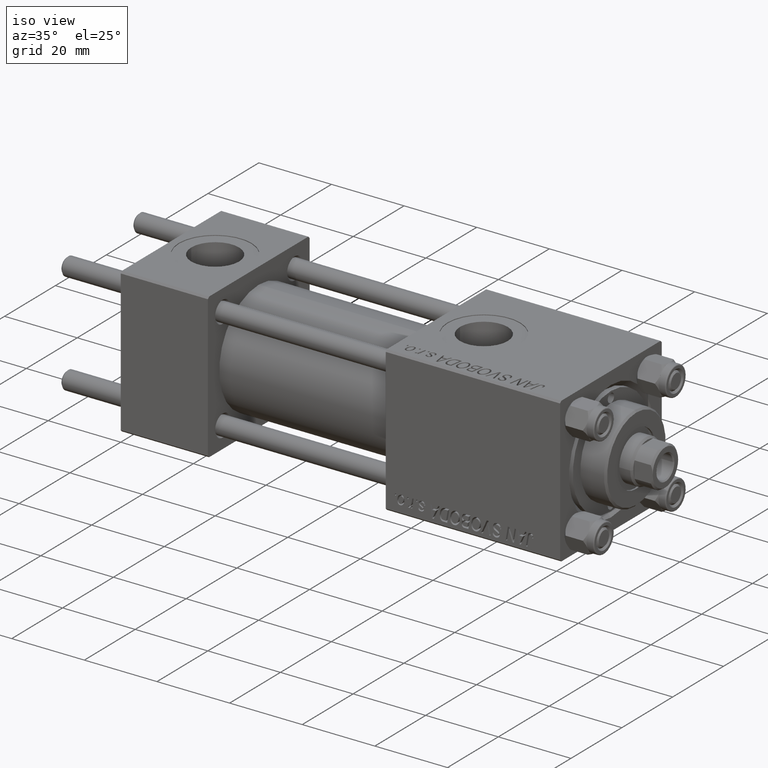
[diagram: clean part render]
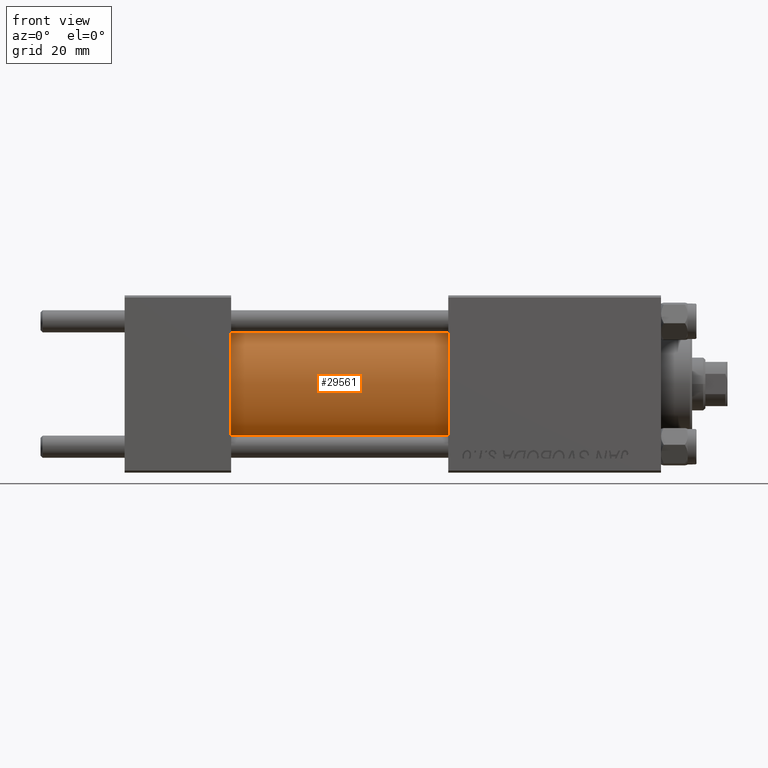
[diagram: tour spotlight — one face highlighted and labeled with its STEP entity id]
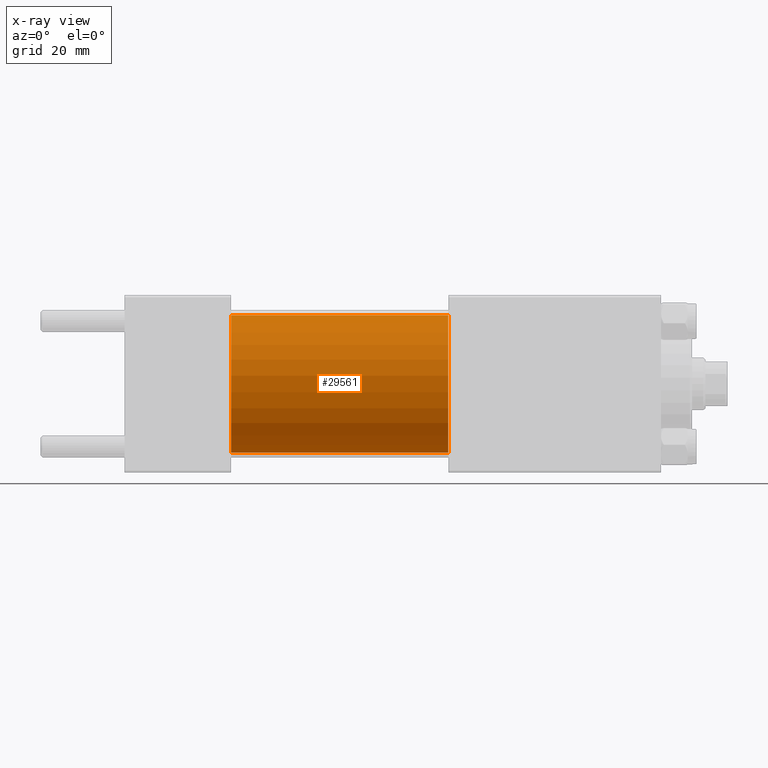
[diagram: x-ray of the same camera — body ghosted, this tour face saturated]
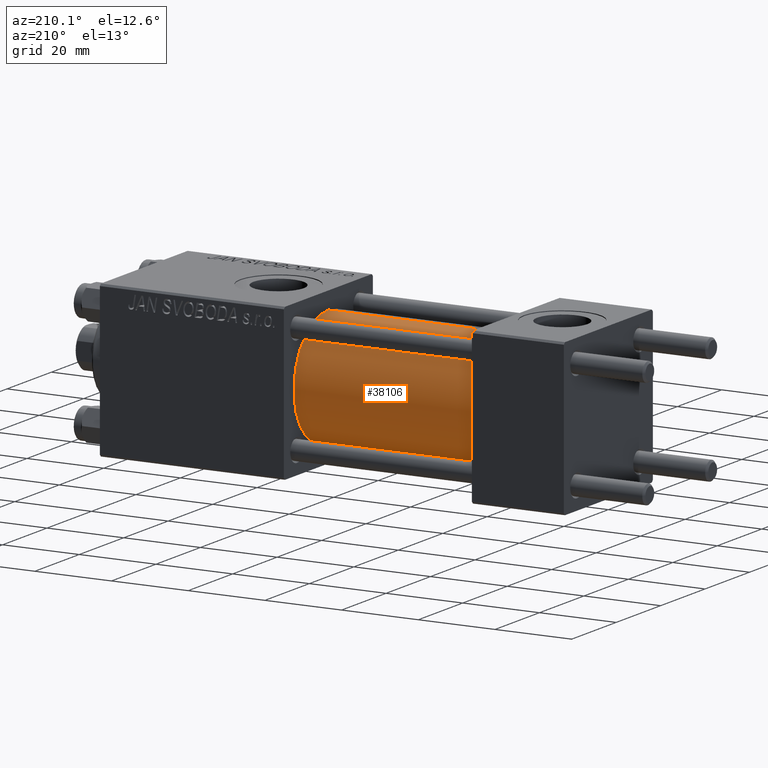
[diagram: tour spotlight — one face highlighted and labeled with its STEP entity id]
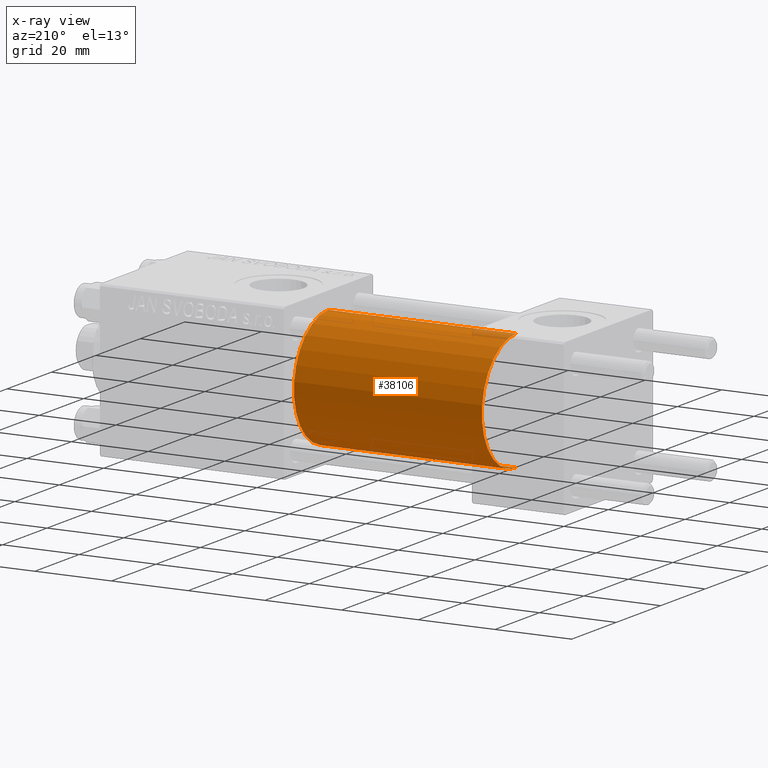
[diagram: x-ray of the same camera — body ghosted, this tour face saturated]
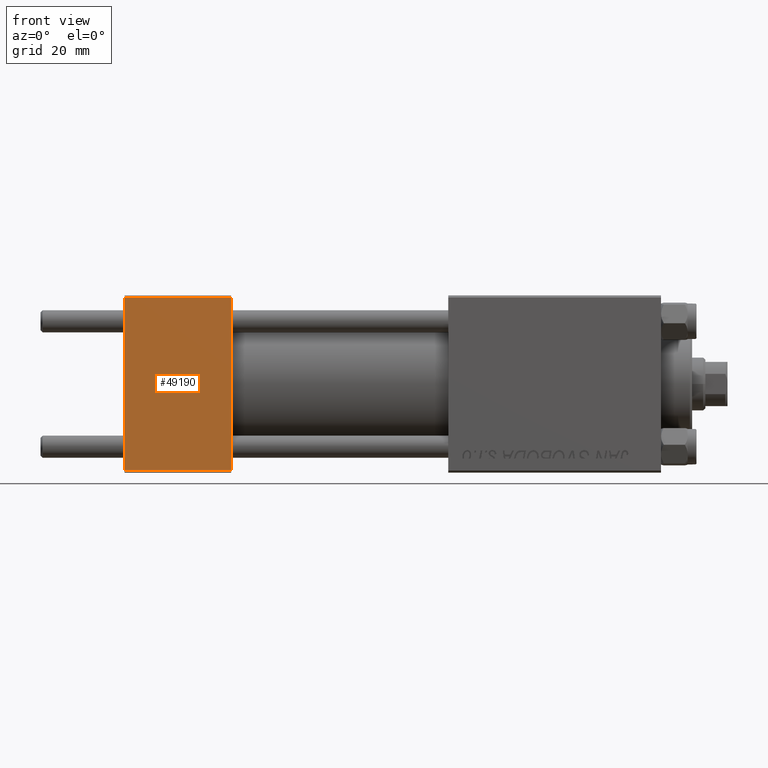
[diagram: tour spotlight — one face highlighted and labeled with its STEP entity id]
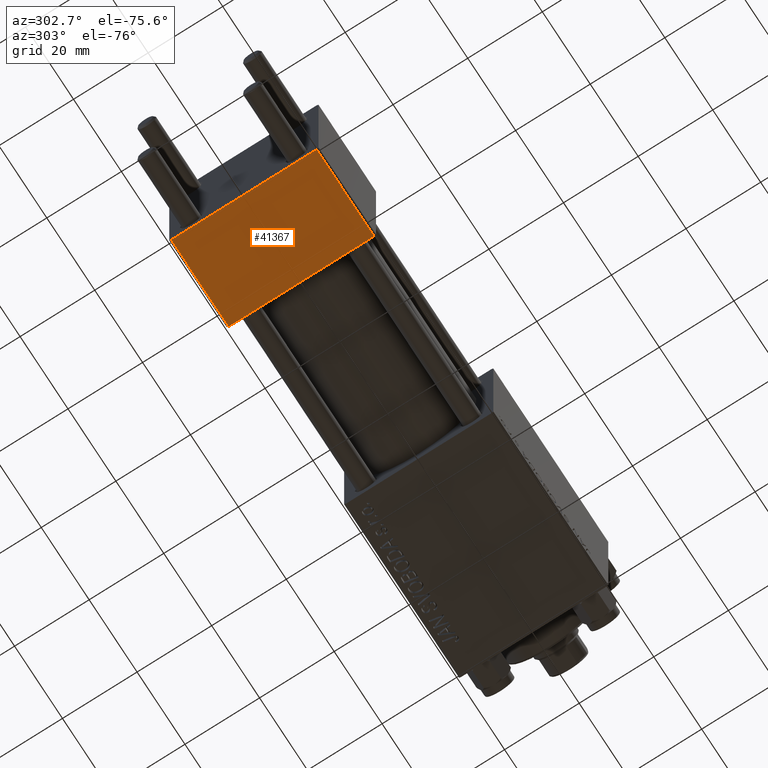
[diagram: tour spotlight — one face highlighted and labeled with its STEP entity id]
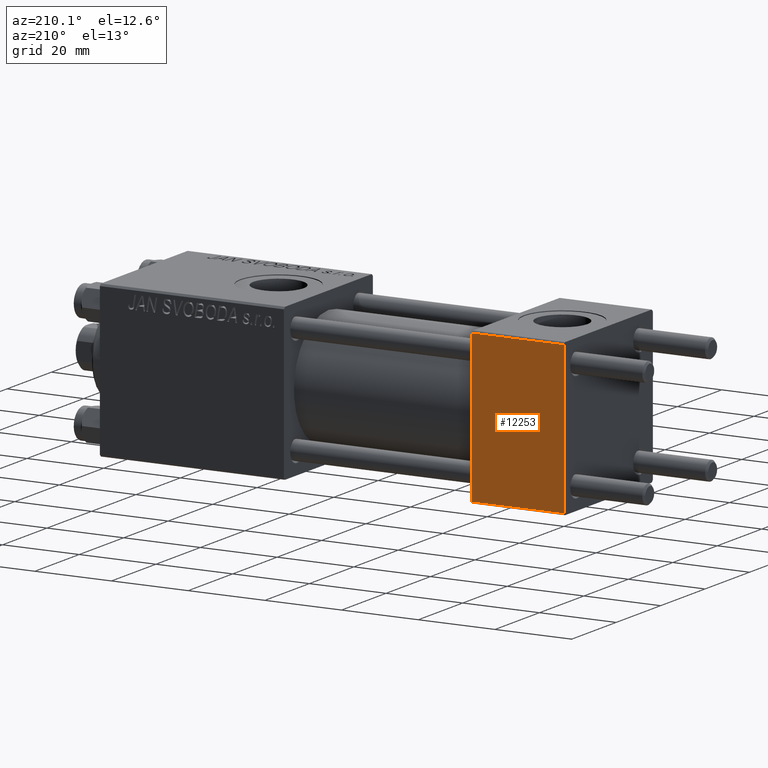
[diagram: tour spotlight — one face highlighted and labeled with its STEP entity id]
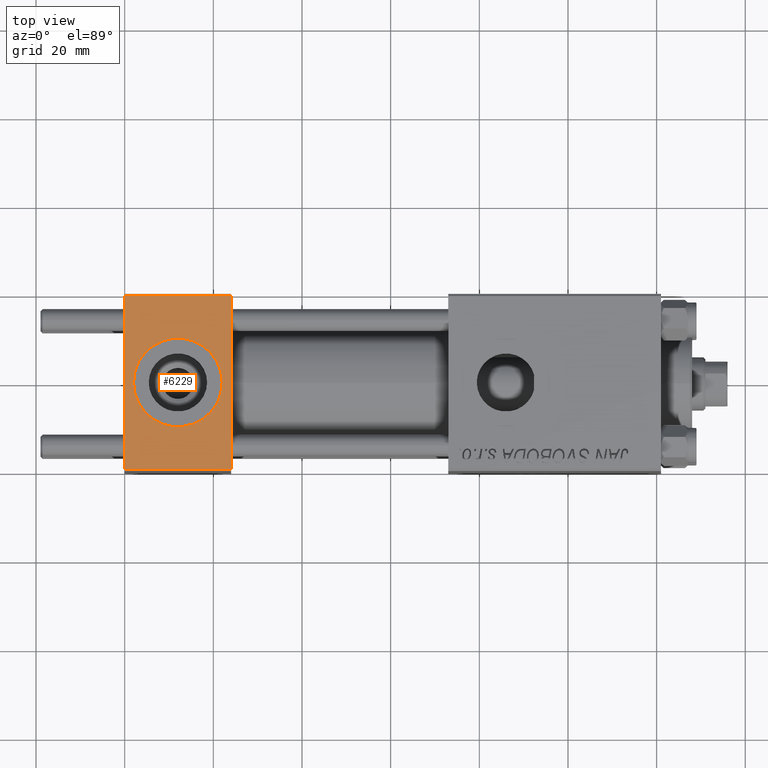
[diagram: tour spotlight — one face highlighted and labeled with its STEP entity id]
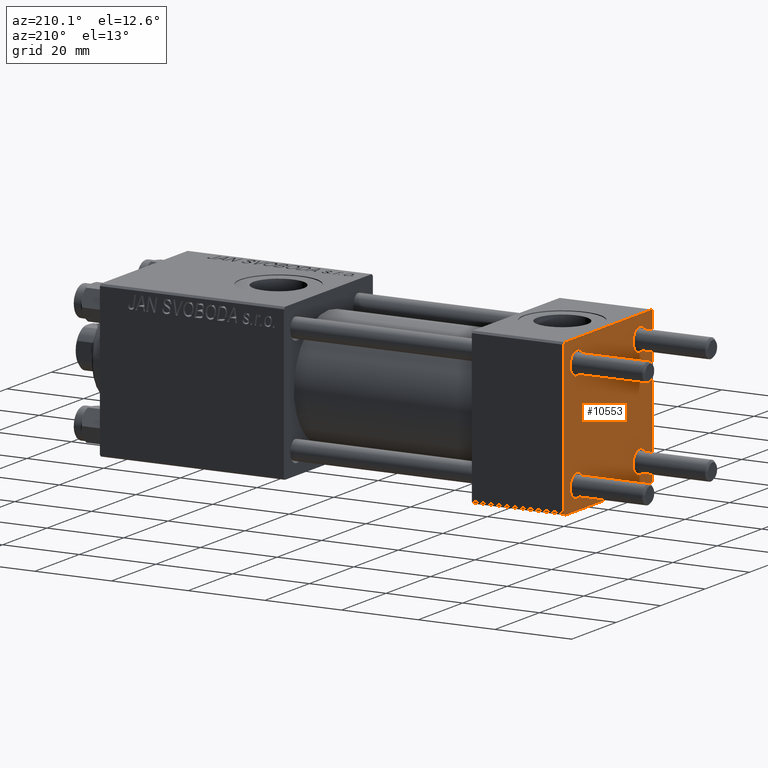
[diagram: tour spotlight — one face highlighted and labeled with its STEP entity id]
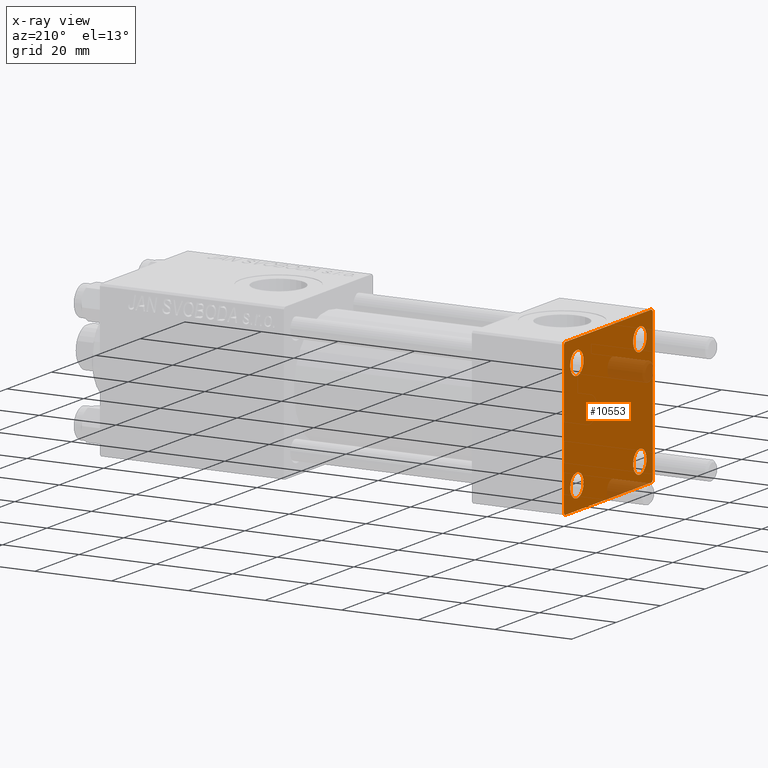
[diagram: x-ray of the same camera — body ghosted, this tour face saturated]
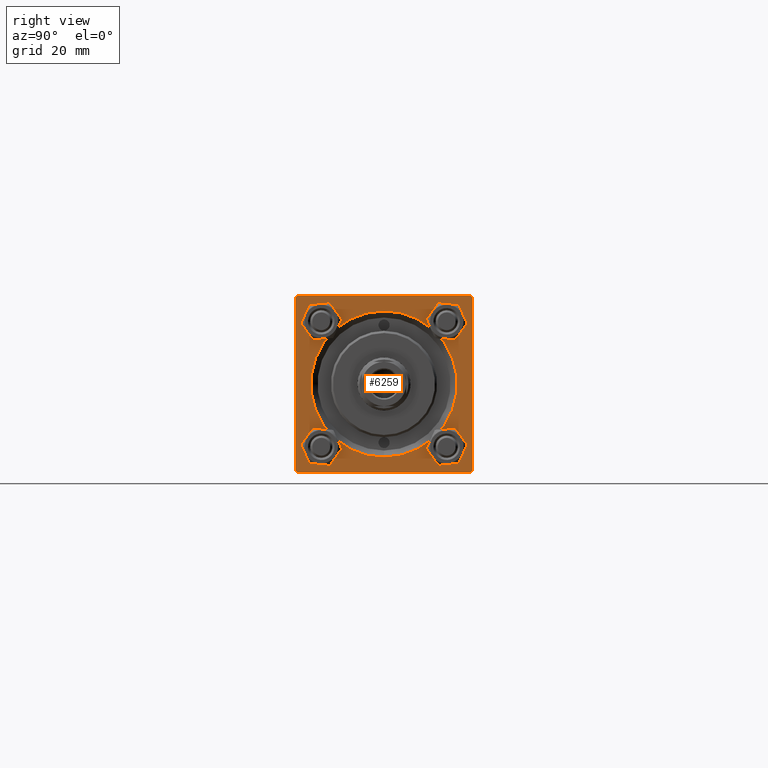
[diagram: tour spotlight — one face highlighted and labeled with its STEP entity id]
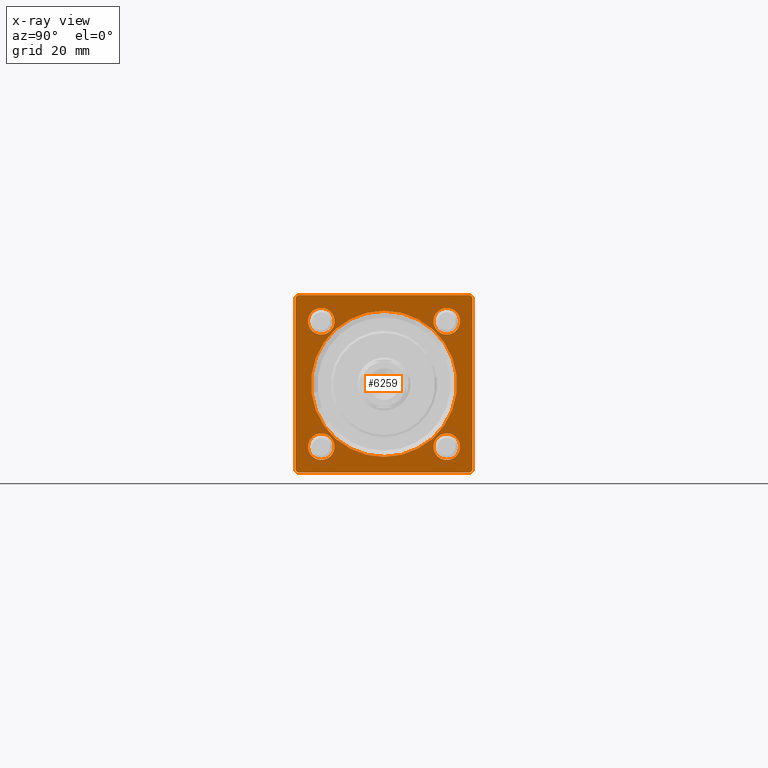
[diagram: x-ray of the same camera — body ghosted, this tour face saturated]
A machine part: a face-by-face anatomy tour. The part has 1137 B-rep faces; the first image is the clean iso view, then the 8 largest visible faces are spotlighted one at a time (largest first), each with its STEP entity span.

Face 1 — front view, entity #29561. An x-ray twin of the same camera follows (body ghosted, this face saturated) — the face is partly hidden behind the body. In plain terms, the highlighted cylindrical surface (partial cylindrical patch) has radius 15.5 mm, axis along (-1, -0, -0).
Definition (entity closure, byte-faithful):
#1939 = LINE ( 'NONE', #17347, #37866 ) ;
#2303 = VERTEX_POINT ( 'NONE', #16879 ) ;
#7712 = VERTEX_POINT ( 'NONE', #34354 ) ;
#8749 = DIRECTION ( 'NONE',  ( 0.000000000000000000, 0.000000000000000000, 1.000000000000000000 ) ) ;
#9753 = CARTESIAN_POINT ( 'NONE',  ( 73.00000000000001421, 0.000000000000000000, 0.000000000000000000 ) ) ;
#11856 = CARTESIAN_POINT ( 'NONE',  ( 73.00000000000001421, 0.000000000000000000, 0.000000000000000000 ) ) ;
#11985 = AXIS2_PLACEMENT_3D ( 'NONE', #11856, #27738, #39115 ) ;
#14917 = FACE_OUTER_BOUND ( 'NONE', #21288, .T. ) ;
#15438 = EDGE_CURVE ( 'NONE', #45571, #7712, #33778, .T. ) ;
#16879 = CARTESIAN_POINT ( 'NONE',  ( 24.00000000000000000, 0.000000000000000000, 15.50000000000000000 ) ) ;
#17347 = CARTESIAN_POINT ( 'NONE',  ( 73.00000000000001421, 1.898202538678397557E-15, -15.50000000000000000 ) ) ;
#18563 = VECTOR ( 'NONE', #37212, 1000.000000000000000 ) ;
#19013 = ORIENTED_EDGE ( 'NONE', *, *, #39920, .T. ) ;
#20496 = VERTEX_POINT ( 'NONE', #36222 ) ;
#21288 = EDGE_LOOP ( 'NONE', ( #45467, #32908, #19013, #21982 ) ) ;
#21300 = CARTESIAN_POINT ( 'NONE',  ( 73.00000000000001421, 0.000000000000000000, 15.50000000000000000 ) ) ;
#21802 = LINE ( 'NONE', #29625, #18563 ) ;
#21982 = ORIENTED_EDGE ( 'NONE', *, *, #30048, .T. ) ;
#25420 = DIRECTION ( 'NONE',  ( -1.000000000000000000, -0.000000000000000000, -0.000000000000000000 ) ) ;
#27738 = DIRECTION ( 'NONE',  ( 1.000000000000000000, 0.000000000000000000, 0.000000000000000000 ) ) ;
#28182 = DIRECTION ( 'NONE',  ( -1.000000000000000000, -0.000000000000000000, -0.000000000000000000 ) ) ;
#29561 = ADVANCED_FACE ( 'NONE', ( #14917 ), #43833, .T. ) ;
#29625 = CARTESIAN_POINT ( 'NONE',  ( 73.00000000000001421, 0.000000000000000000, 15.50000000000000000 ) ) ;
#30048 = EDGE_CURVE ( 'NONE', #2303, #20496, #49827, .T. ) ;
#30568 = DIRECTION ( 'NONE',  ( 1.000000000000000000, 0.000000000000000000, 0.000000000000000000 ) ) ;
#31287 = AXIS2_PLACEMENT_3D ( 'NONE', #49010, #30568, #41693 ) ;
#32908 = ORIENTED_EDGE ( 'NONE', *, *, #15438, .F. ) ;
#33778 = CIRCLE ( 'NONE', #11985, 15.50000000000000000 ) ;
#33867 = EDGE_CURVE ( 'NONE', #7712, #20496, #1939, .T. ) ;
#34354 = CARTESIAN_POINT ( 'NONE',  ( 73.00000000000001421, 1.898202538678397557E-15, -15.50000000000000000 ) ) ;
#36222 = CARTESIAN_POINT ( 'NONE',  ( 24.00000000000000000, 1.898202538678397557E-15, -15.50000000000000000 ) ) ;
#37212 = DIRECTION ( 'NONE',  ( -1.000000000000000000, -0.000000000000000000, -0.000000000000000000 ) ) ;
#37722 = AXIS2_PLACEMENT_3D ( 'NONE', #9753, #28182, #8749 ) ;
#37866 = VECTOR ( 'NONE', #25420, 1000.000000000000000 ) ;
#39115 = DIRECTION ( 'NONE',  ( 0.000000000000000000, 0.000000000000000000, -1.000000000000000000 ) ) ;
#39920 = EDGE_CURVE ( 'NONE', #45571, #2303, #21802, .T. ) ;
#41693 = DIRECTION ( 'NONE',  ( 0.000000000000000000, 0.000000000000000000, 1.000000000000000000 ) ) ;
#43833 = CYLINDRICAL_SURFACE ( 'NONE', #37722, 15.50000000000000000 ) ;
#45467 = ORIENTED_EDGE ( 'NONE', *, *, #33867, .F. ) ;
#45571 = VERTEX_POINT ( 'NONE', #21300 ) ;
#49010 = CARTESIAN_POINT ( 'NONE',  ( 24.00000000000000000, 0.000000000000000000, 0.000000000000000000 ) ) ;
#49827 = CIRCLE ( 'NONE', #31287, 15.50000000000000000 ) ;

Face 2 — auxiliary view, entity #38106. An x-ray twin of the same camera follows (body ghosted, this face saturated) — the face is partly hidden behind the body. In plain terms, the highlighted cylindrical surface (partial cylindrical patch) has radius 15.5 mm, axis along (-1, -0, -0).
Definition (entity closure, byte-faithful):
#721 = CARTESIAN_POINT ( 'NONE',  ( 24.00000000000000000, 0.000000000000000000, 0.000000000000000000 ) ) ;
#1939 = LINE ( 'NONE', #17347, #37866 ) ;
#2303 = VERTEX_POINT ( 'NONE', #16879 ) ;
#4208 = AXIS2_PLACEMENT_3D ( 'NONE', #42358, #23408, #16323 ) ;
#5121 = ORIENTED_EDGE ( 'NONE', *, *, #33867, .T. ) ;
#7712 = VERTEX_POINT ( 'NONE', #34354 ) ;
#8374 = ORIENTED_EDGE ( 'NONE', *, *, #27623, .T. ) ;
#9448 = ORIENTED_EDGE ( 'NONE', *, *, #39920, .F. ) ;
#15690 = DIRECTION ( 'NONE',  ( -1.000000000000000000, -0.000000000000000000, -0.000000000000000000 ) ) ;
#16323 = DIRECTION ( 'NONE',  ( 0.000000000000000000, 0.000000000000000000, -1.000000000000000000 ) ) ;
#16687 = AXIS2_PLACEMENT_3D ( 'NONE', #721, #39104, #26755 ) ;
#16879 = CARTESIAN_POINT ( 'NONE',  ( 24.00000000000000000, 0.000000000000000000, 15.50000000000000000 ) ) ;
#17347 = CARTESIAN_POINT ( 'NONE',  ( 73.00000000000001421, 1.898202538678397557E-15, -15.50000000000000000 ) ) ;
#17787 = EDGE_LOOP ( 'NONE', ( #32124, #5121, #8374, #9448 ) ) ;
#18563 = VECTOR ( 'NONE', #37212, 1000.000000000000000 ) ;
#20496 = VERTEX_POINT ( 'NONE', #36222 ) ;
#20717 = CIRCLE ( 'NONE', #16687, 15.50000000000000000 ) ;
#21300 = CARTESIAN_POINT ( 'NONE',  ( 73.00000000000001421, 0.000000000000000000, 15.50000000000000000 ) ) ;
#21802 = LINE ( 'NONE', #29625, #18563 ) ;
#23408 = DIRECTION ( 'NONE',  ( 1.000000000000000000, 0.000000000000000000, 0.000000000000000000 ) ) ;
#23503 = FACE_OUTER_BOUND ( 'NONE', #17787, .T. ) ;
#25420 = DIRECTION ( 'NONE',  ( -1.000000000000000000, -0.000000000000000000, -0.000000000000000000 ) ) ;
#26755 = DIRECTION ( 'NONE',  ( 0.000000000000000000, 0.000000000000000000, 1.000000000000000000 ) ) ;
#27623 = EDGE_CURVE ( 'NONE', #20496, #2303, #20717, .T. ) ;
#29625 = CARTESIAN_POINT ( 'NONE',  ( 73.00000000000001421, 0.000000000000000000, 15.50000000000000000 ) ) ;
#32124 = ORIENTED_EDGE ( 'NONE', *, *, #45090, .F. ) ;
#33867 = EDGE_CURVE ( 'NONE', #7712, #20496, #1939, .T. ) ;
#34354 = CARTESIAN_POINT ( 'NONE',  ( 73.00000000000001421, 1.898202538678397557E-15, -15.50000000000000000 ) ) ;
#34888 = CYLINDRICAL_SURFACE ( 'NONE', #39461, 15.50000000000000000 ) ;
#36222 = CARTESIAN_POINT ( 'NONE',  ( 24.00000000000000000, 1.898202538678397557E-15, -15.50000000000000000 ) ) ;
#37212 = DIRECTION ( 'NONE',  ( -1.000000000000000000, -0.000000000000000000, -0.000000000000000000 ) ) ;
#37866 = VECTOR ( 'NONE', #25420, 1000.000000000000000 ) ;
#38106 = ADVANCED_FACE ( 'NONE', ( #23503 ), #34888, .T. ) ;
#39104 = DIRECTION ( 'NONE',  ( 1.000000000000000000, 0.000000000000000000, 0.000000000000000000 ) ) ;
#39165 = CARTESIAN_POINT ( 'NONE',  ( 73.00000000000001421, 0.000000000000000000, 0.000000000000000000 ) ) ;
#39461 = AXIS2_PLACEMENT_3D ( 'NONE', #39165, #15690, #46487 ) ;
#39920 = EDGE_CURVE ( 'NONE', #45571, #2303, #21802, .T. ) ;
#41304 = CIRCLE ( 'NONE', #4208, 15.50000000000000000 ) ;
#42358 = CARTESIAN_POINT ( 'NONE',  ( 73.00000000000001421, 0.000000000000000000, 0.000000000000000000 ) ) ;
#45090 = EDGE_CURVE ( 'NONE', #7712, #45571, #41304, .T. ) ;
#45571 = VERTEX_POINT ( 'NONE', #21300 ) ;
#46487 = DIRECTION ( 'NONE',  ( 0.000000000000000000, 0.000000000000000000, 1.000000000000000000 ) ) ;

Face 3 — front view, entity #49190. In plain terms, the highlighted planar face has unit normal (0, 1, 0).
Definition (entity closure, byte-faithful):
#222 = CARTESIAN_POINT ( 'NONE',  ( 24.00000000000000000, -20.00000000000000000, -19.49999999999999645 ) ) ;
#1748 = LINE ( 'NONE', #39385, #7321 ) ;
#2970 = CARTESIAN_POINT ( 'NONE',  ( 24.00000000000000000, -20.00000000000000355, 19.49999999999998224 ) ) ;
#3139 = EDGE_LOOP ( 'NONE', ( #36677, #15764, #22302, #20080 ) ) ;
#4788 = DIRECTION ( 'NONE',  ( 1.000000000000000000, 0.000000000000000000, 0.000000000000000000 ) ) ;
#7099 = LINE ( 'NONE', #37404, #48852 ) ;
#7321 = VECTOR ( 'NONE', #4788, 1000.000000000000000 ) ;
#9696 = VERTEX_POINT ( 'NONE', #37964 ) ;
#10997 = EDGE_CURVE ( 'NONE', #9696, #18985, #7099, .T. ) ;
#11412 = CARTESIAN_POINT ( 'NONE',  ( 0.000000000000000000, -20.00000000000000000, -19.49999999999999645 ) ) ;
#14719 = CARTESIAN_POINT ( 'NONE',  ( 0.000000000000000000, -20.00000000000000355, 19.49999999999998224 ) ) ;
#15764 = ORIENTED_EDGE ( 'NONE', *, *, #41185, .T. ) ;
#17048 = DIRECTION ( 'NONE',  ( -0.000000000000000000, 1.000000000000000000, 8.673617379884036705E-17 ) ) ;
#18985 = VERTEX_POINT ( 'NONE', #222 ) ;
#20080 = ORIENTED_EDGE ( 'NONE', *, *, #27878, .T. ) ;
#22302 = ORIENTED_EDGE ( 'NONE', *, *, #10997, .F. ) ;
#24363 = PLANE ( 'NONE',  #39884 ) ;
#25653 = EDGE_CURVE ( 'NONE', #29293, #38026, #39221, .T. ) ;
#27878 = EDGE_CURVE ( 'NONE', #9696, #29293, #48930, .T. ) ;
#29293 = VERTEX_POINT ( 'NONE', #14719 ) ;
#31229 = DIRECTION ( 'NONE',  ( -1.000000000000000000, 0.000000000000000000, 0.000000000000000000 ) ) ;
#35738 = FACE_OUTER_BOUND ( 'NONE', #3139, .T. ) ;
#35995 = CARTESIAN_POINT ( 'NONE',  ( 24.00000000000000000, -20.00000000000000355, 19.99999999999998934 ) ) ;
#36677 = ORIENTED_EDGE ( 'NONE', *, *, #25653, .T. ) ;
#37404 = CARTESIAN_POINT ( 'NONE',  ( 24.00000000000000000, -20.00000000000000355, 19.99999999999998934 ) ) ;
#37964 = CARTESIAN_POINT ( 'NONE',  ( 24.00000000000000000, -20.00000000000000355, 19.49999999999998224 ) ) ;
#38026 = VERTEX_POINT ( 'NONE', #11412 ) ;
#39221 = LINE ( 'NONE', #47272, #45651 ) ;
#39385 = CARTESIAN_POINT ( 'NONE',  ( 24.00000000000000000, -20.00000000000000000, -19.49999999999999645 ) ) ;
#39463 = DIRECTION ( 'NONE',  ( 0.000000000000000000, 8.673617379884036705E-17, -1.000000000000000000 ) ) ;
#39884 = AXIS2_PLACEMENT_3D ( 'NONE', #35995, #17048, #43562 ) ;
#41185 = EDGE_CURVE ( 'NONE', #38026, #18985, #1748, .T. ) ;
#41728 = VECTOR ( 'NONE', #31229, 1000.000000000000000 ) ;
#43562 = DIRECTION ( 'NONE',  ( 0.000000000000000000, -8.673617379884036705E-17, 1.000000000000000000 ) ) ;
#45651 = VECTOR ( 'NONE', #39463, 1000.000000000000000 ) ;
#47272 = CARTESIAN_POINT ( 'NONE',  ( 0.000000000000000000, -20.00000000000000355, 19.99999999999998934 ) ) ;
#48704 = DIRECTION ( 'NONE',  ( 0.000000000000000000, 8.673617379884036705E-17, -1.000000000000000000 ) ) ;
#48852 = VECTOR ( 'NONE', #48704, 1000.000000000000000 ) ;
#48930 = LINE ( 'NONE', #2970, #41728 ) ;
#49190 = ADVANCED_FACE ( 'NONE', ( #35738 ), #24363, .F. ) ;

Face 4 — auxiliary view, entity #41367. In plain terms, the highlighted planar face has unit normal (0, -0, -1).
Definition (entity closure, byte-faithful):
#1312 = EDGE_CURVE ( 'NONE', #23238, #37124, #20591, .T. ) ;
#1412 = CARTESIAN_POINT ( 'NONE',  ( 0.000000000000000000, -19.50000000000000711, -20.00000000000000000 ) ) ;
#7102 = CARTESIAN_POINT ( 'NONE',  ( 24.00000000000000000, 19.50000000000000711, -20.00000000000000711 ) ) ;
#8318 = VECTOR ( 'NONE', #45074, 1000.000000000000000 ) ;
#10514 = LINE ( 'NONE', #30700, #47973 ) ;
#10868 = VECTOR ( 'NONE', #42701, 1000.000000000000000 ) ;
#11564 = DIRECTION ( 'NONE',  ( 0.000000000000000000, -1.734723475976806848E-16, -1.000000000000000000 ) ) ;
#14868 = DIRECTION ( 'NONE',  ( 0.000000000000000000, 1.000000000000000000, -1.734723475976806848E-16 ) ) ;
#17193 = ORIENTED_EDGE ( 'NONE', *, *, #23495, .F. ) ;
#18648 = PLANE ( 'NONE',  #34755 ) ;
#19691 = VERTEX_POINT ( 'NONE', #7102 ) ;
#20591 = LINE ( 'NONE', #1412, #8318 ) ;
#20709 = EDGE_LOOP ( 'NONE', ( #17193, #47787, #45212, #30816 ) ) ;
#21256 = CARTESIAN_POINT ( 'NONE',  ( 0.000000000000000000, -19.50000000000000711, -20.00000000000000000 ) ) ;
#21734 = EDGE_CURVE ( 'NONE', #37128, #19691, #47471, .T. ) ;
#23114 = CARTESIAN_POINT ( 'NONE',  ( 24.00000000000000000, 20.00000000000000000, -20.00000000000000711 ) ) ;
#23238 = VERTEX_POINT ( 'NONE', #33370 ) ;
#23495 = EDGE_CURVE ( 'NONE', #37128, #37124, #10514, .T. ) ;
#26665 = DIRECTION ( 'NONE',  ( 0.000000000000000000, -1.000000000000000000, 1.734723475976807094E-16 ) ) ;
#30700 = CARTESIAN_POINT ( 'NONE',  ( 0.000000000000000000, 20.00000000000000000, -20.00000000000000711 ) ) ;
#30760 = FACE_OUTER_BOUND ( 'NONE', #20709, .T. ) ;
#30816 = ORIENTED_EDGE ( 'NONE', *, *, #1312, .T. ) ;
#30943 = LINE ( 'NONE', #23114, #46806 ) ;
#31833 = CARTESIAN_POINT ( 'NONE',  ( 24.00000000000000000, 19.50000000000000711, -20.00000000000000711 ) ) ;
#33370 = CARTESIAN_POINT ( 'NONE',  ( 24.00000000000000000, -19.50000000000000711, -20.00000000000000000 ) ) ;
#34064 = CARTESIAN_POINT ( 'NONE',  ( 24.00000000000000000, 20.00000000000000000, -20.00000000000000711 ) ) ;
#34755 = AXIS2_PLACEMENT_3D ( 'NONE', #34064, #11564, #14868 ) ;
#37124 = VERTEX_POINT ( 'NONE', #21256 ) ;
#37128 = VERTEX_POINT ( 'NONE', #43733 ) ;
#40685 = EDGE_CURVE ( 'NONE', #19691, #23238, #30943, .T. ) ;
#41367 = ADVANCED_FACE ( 'NONE', ( #30760 ), #18648, .T. ) ;
#42701 = DIRECTION ( 'NONE',  ( 1.000000000000000000, 0.000000000000000000, 0.000000000000000000 ) ) ;
#43733 = CARTESIAN_POINT ( 'NONE',  ( 0.000000000000000000, 19.50000000000000711, -20.00000000000000711 ) ) ;
#45074 = DIRECTION ( 'NONE',  ( -1.000000000000000000, 0.000000000000000000, 0.000000000000000000 ) ) ;
#45212 = ORIENTED_EDGE ( 'NONE', *, *, #40685, .T. ) ;
#45609 = DIRECTION ( 'NONE',  ( 0.000000000000000000, -1.000000000000000000, 1.734723475976807094E-16 ) ) ;
#46806 = VECTOR ( 'NONE', #26665, 1000.000000000000000 ) ;
#47471 = LINE ( 'NONE', #31833, #10868 ) ;
#47787 = ORIENTED_EDGE ( 'NONE', *, *, #21734, .T. ) ;
#47973 = VECTOR ( 'NONE', #45609, 1000.000000000000000 ) ;

Face 5 — auxiliary view, entity #12253. In plain terms, the highlighted planar face has unit normal (0, 1, 0).
Definition (entity closure, byte-faithful):
#636 = VERTEX_POINT ( 'NONE', #25065 ) ;
#3035 = ORIENTED_EDGE ( 'NONE', *, *, #15334, .T. ) ;
#3037 = LINE ( 'NONE', #22966, #6322 ) ;
#3119 = VECTOR ( 'NONE', #22224, 1000.000000000000000 ) ;
#3431 = ORIENTED_EDGE ( 'NONE', *, *, #38403, .F. ) ;
#3447 = DIRECTION ( 'NONE',  ( 0.000000000000000000, -0.000000000000000000, 1.000000000000000000 ) ) ;
#6322 = VECTOR ( 'NONE', #49752, 1000.000000000000000 ) ;
#6816 = CARTESIAN_POINT ( 'NONE',  ( 24.00000000000000000, 20.00000000000000000, 19.49999999999999289 ) ) ;
#7063 = LINE ( 'NONE', #49739, #36249 ) ;
#7400 = VERTEX_POINT ( 'NONE', #8119 ) ;
#8119 = CARTESIAN_POINT ( 'NONE',  ( 24.00000000000000000, 20.00000000000000000, 19.49999999999999289 ) ) ;
#8600 = CARTESIAN_POINT ( 'NONE',  ( 24.00000000000000000, 20.00000000000000000, -19.50000000000002132 ) ) ;
#11286 = DIRECTION ( 'NONE',  ( -0.000000000000000000, 1.000000000000000000, 0.000000000000000000 ) ) ;
#12253 = ADVANCED_FACE ( 'NONE', ( #38051 ), #19343, .T. ) ;
#12638 = VERTEX_POINT ( 'NONE', #8600 ) ;
#13186 = VERTEX_POINT ( 'NONE', #37004 ) ;
#15334 = EDGE_CURVE ( 'NONE', #12638, #13186, #3037, .T. ) ;
#15398 = EDGE_CURVE ( 'NONE', #636, #7400, #26009, .T. ) ;
#19343 = PLANE ( 'NONE',  #48048 ) ;
#22224 = DIRECTION ( 'NONE',  ( 1.000000000000000000, 0.000000000000000000, 0.000000000000000000 ) ) ;
#22258 = CARTESIAN_POINT ( 'NONE',  ( 24.00000000000000000, 20.00000000000000000, 20.00000000000000000 ) ) ;
#22966 = CARTESIAN_POINT ( 'NONE',  ( 24.00000000000000000, 20.00000000000000000, -19.50000000000002132 ) ) ;
#25065 = CARTESIAN_POINT ( 'NONE',  ( 0.000000000000000000, 20.00000000000000000, 19.49999999999999289 ) ) ;
#26009 = LINE ( 'NONE', #6816, #3119 ) ;
#29322 = LINE ( 'NONE', #22258, #45155 ) ;
#36120 = EDGE_LOOP ( 'NONE', ( #37913, #3035, #3431, #37247 ) ) ;
#36249 = VECTOR ( 'NONE', #37877, 1000.000000000000000 ) ;
#36424 = EDGE_CURVE ( 'NONE', #7400, #12638, #29322, .T. ) ;
#37004 = CARTESIAN_POINT ( 'NONE',  ( 0.000000000000000000, 20.00000000000000000, -19.50000000000002132 ) ) ;
#37247 = ORIENTED_EDGE ( 'NONE', *, *, #15398, .T. ) ;
#37674 = DIRECTION ( 'NONE',  ( 0.000000000000000000, 0.000000000000000000, -1.000000000000000000 ) ) ;
#37877 = DIRECTION ( 'NONE',  ( 0.000000000000000000, 0.000000000000000000, -1.000000000000000000 ) ) ;
#37913 = ORIENTED_EDGE ( 'NONE', *, *, #36424, .T. ) ;
#38051 = FACE_OUTER_BOUND ( 'NONE', #36120, .T. ) ;
#38403 = EDGE_CURVE ( 'NONE', #636, #13186, #7063, .T. ) ;
#45155 = VECTOR ( 'NONE', #37674, 1000.000000000000000 ) ;
#45872 = CARTESIAN_POINT ( 'NONE',  ( 24.00000000000000000, 20.00000000000000000, 20.00000000000000000 ) ) ;
#48048 = AXIS2_PLACEMENT_3D ( 'NONE', #45872, #11286, #3447 ) ;
#49739 = CARTESIAN_POINT ( 'NONE',  ( 0.000000000000000000, 20.00000000000000000, 20.00000000000000000 ) ) ;
#49752 = DIRECTION ( 'NONE',  ( -1.000000000000000000, 0.000000000000000000, 0.000000000000000000 ) ) ;

Face 6 — top view, entity #6229. In plain terms, the highlighted planar face has unit normal (0, 0, -1).
Definition (entity closure, byte-faithful):
#1378 = CARTESIAN_POINT ( 'NONE',  ( 24.00000000000000000, -19.49999999999999289, 19.99999999999998934 ) ) ;
#1731 = CARTESIAN_POINT ( 'NONE',  ( 24.00000000000000000, 19.50000000000000000, 20.00000000000000000 ) ) ;
#1971 = AXIS2_PLACEMENT_3D ( 'NONE', #32207, #47596, #13008 ) ;
#2828 = ORIENTED_EDGE ( 'NONE', *, *, #38678, .T. ) ;
#4250 = DIRECTION ( 'NONE',  ( -1.000000000000000000, 0.000000000000000000, 0.000000000000000000 ) ) ;
#5102 = VERTEX_POINT ( 'NONE', #35852 ) ;
#6229 = ADVANCED_FACE ( 'NONE', ( #47087, #47593 ), #47343, .F. ) ;
#6365 = DIRECTION ( 'NONE',  ( 1.000000000000000000, 0.000000000000000000, 0.000000000000000000 ) ) ;
#7016 = VERTEX_POINT ( 'NONE', #27484 ) ;
#7073 = VECTOR ( 'NONE', #38022, 1000.000000000000000 ) ;
#7760 = CIRCLE ( 'NONE', #24686, 9.999999999999998224 ) ;
#9100 = ORIENTED_EDGE ( 'NONE', *, *, #29864, .T. ) ;
#10920 = EDGE_CURVE ( 'NONE', #16379, #43232, #14426, .T. ) ;
#12073 = CARTESIAN_POINT ( 'NONE',  ( 0.000000000000000000, 19.50000000000000000, 20.00000000000000000 ) ) ;
#13005 = DIRECTION ( 'NONE',  ( 0.000000000000000000, 2.602085213965210149E-16, -1.000000000000000000 ) ) ;
#13008 = DIRECTION ( 'NONE',  ( 1.000000000000000000, 0.000000000000000000, 0.000000000000000000 ) ) ;
#13755 = EDGE_LOOP ( 'NONE', ( #9100, #2828, #42971, #18888 ) ) ;
#14426 = LINE ( 'NONE', #22252, #21416 ) ;
#15257 = VECTOR ( 'NONE', #4250, 1000.000000000000000 ) ;
#16379 = VERTEX_POINT ( 'NONE', #1731 ) ;
#18888 = ORIENTED_EDGE ( 'NONE', *, *, #37545, .T. ) ;
#19073 = LINE ( 'NONE', #34490, #7073 ) ;
#19636 = AXIS2_PLACEMENT_3D ( 'NONE', #27910, #13005, #43316 ) ;
#19645 = LINE ( 'NONE', #12073, #15257 ) ;
#21325 = CIRCLE ( 'NONE', #1971, 9.999999999999998224 ) ;
#21416 = VECTOR ( 'NONE', #49022, 1000.000000000000000 ) ;
#21573 = DIRECTION ( 'NONE',  ( 1.000000000000000000, 0.000000000000000000, 0.000000000000000000 ) ) ;
#21728 = VECTOR ( 'NONE', #21573, 1000.000000000000000 ) ;
#22252 = CARTESIAN_POINT ( 'NONE',  ( 24.00000000000000000, 20.00000000000000000, 20.00000000000000000 ) ) ;
#22999 = CARTESIAN_POINT ( 'NONE',  ( 0.000000000000000000, 19.50000000000000000, 20.00000000000000000 ) ) ;
#23775 = EDGE_LOOP ( 'NONE', ( #40153, #33119 ) ) ;
#24686 = AXIS2_PLACEMENT_3D ( 'NONE', #40972, #48790, #6365 ) ;
#25830 = EDGE_CURVE ( 'NONE', #7016, #37188, #7760, .T. ) ;
#27484 = CARTESIAN_POINT ( 'NONE',  ( 22.00000000000000000, 1.540743955509788682E-30, 19.99999999999999645 ) ) ;
#27910 = CARTESIAN_POINT ( 'NONE',  ( 24.00000000000000000, 20.00000000000000000, 20.00000000000000000 ) ) ;
#29864 = EDGE_CURVE ( 'NONE', #32186, #5102, #19073, .T. ) ;
#32186 = VERTEX_POINT ( 'NONE', #22999 ) ;
#32207 = CARTESIAN_POINT ( 'NONE',  ( 12.00000000000000000, 1.540743955509788682E-30, 19.99999999999999645 ) ) ;
#33078 = CARTESIAN_POINT ( 'NONE',  ( 24.00000000000000000, -19.49999999999999289, 19.99999999999998934 ) ) ;
#33119 = ORIENTED_EDGE ( 'NONE', *, *, #49223, .F. ) ;
#34490 = CARTESIAN_POINT ( 'NONE',  ( 0.000000000000000000, 20.00000000000000000, 20.00000000000000000 ) ) ;
#35852 = CARTESIAN_POINT ( 'NONE',  ( 0.000000000000000000, -19.49999999999999289, 19.99999999999998934 ) ) ;
#35971 = LINE ( 'NONE', #1378, #21728 ) ;
#37188 = VERTEX_POINT ( 'NONE', #47765 ) ;
#37545 = EDGE_CURVE ( 'NONE', #16379, #32186, #19645, .T. ) ;
#38022 = DIRECTION ( 'NONE',  ( 0.000000000000000000, -1.000000000000000000, -2.602085213965210149E-16 ) ) ;
#38678 = EDGE_CURVE ( 'NONE', #5102, #43232, #35971, .T. ) ;
#40153 = ORIENTED_EDGE ( 'NONE', *, *, #25830, .F. ) ;
#40972 = CARTESIAN_POINT ( 'NONE',  ( 12.00000000000000000, 1.540743955509788682E-30, 19.99999999999999645 ) ) ;
#42971 = ORIENTED_EDGE ( 'NONE', *, *, #10920, .F. ) ;
#43232 = VERTEX_POINT ( 'NONE', #33078 ) ;
#43316 = DIRECTION ( 'NONE',  ( 0.000000000000000000, 1.000000000000000000, 2.602085213965210149E-16 ) ) ;
#47087 = FACE_BOUND ( 'NONE', #23775, .T. ) ;
#47343 = PLANE ( 'NONE',  #19636 ) ;
#47593 = FACE_OUTER_BOUND ( 'NONE', #13755, .T. ) ;
#47596 = DIRECTION ( 'NONE',  ( 0.000000000000000000, 0.000000000000000000, 1.000000000000000000 ) ) ;
#47765 = CARTESIAN_POINT ( 'NONE',  ( 2.000000000000003553, 1.224646799147354440E-15, 19.99999999999999645 ) ) ;
#48790 = DIRECTION ( 'NONE',  ( 0.000000000000000000, 0.000000000000000000, 1.000000000000000000 ) ) ;
#49022 = DIRECTION ( 'NONE',  ( 0.000000000000000000, -1.000000000000000000, -2.602085213965210149E-16 ) ) ;
#49223 = EDGE_CURVE ( 'NONE', #37188, #7016, #21325, .T. ) ;

Face 7 — auxiliary view, entity #10553. An x-ray twin of the same camera follows (body ghosted, this face saturated) — the face is partly hidden behind the body. In plain terms, the highlighted planar face has unit normal (-1, 0, 0).
Definition (entity closure, byte-faithful):
#419 = CARTESIAN_POINT ( 'NONE',  ( 0.000000000000000000, 14.14999999999999858, 14.15000000000000036 ) ) ;
#508 = VERTEX_POINT ( 'NONE', #33971 ) ;
#636 = VERTEX_POINT ( 'NONE', #25065 ) ;
#927 = FACE_BOUND ( 'NONE', #37582, .T. ) ;
#2436 = LINE ( 'NONE', #44857, #6059 ) ;
#2724 = CIRCLE ( 'NONE', #26951, 3.000000000000000888 ) ;
#3690 = EDGE_CURVE ( 'NONE', #37124, #38026, #40820, .T. ) ;
#4221 = DIRECTION ( 'NONE',  ( 1.000000000000000000, 0.000000000000000000, 0.000000000000000000 ) ) ;
#4367 = CIRCLE ( 'NONE', #12396, 3.000000000000000888 ) ;
#4769 = ORIENTED_EDGE ( 'NONE', *, *, #16234, .T. ) ;
#4877 = EDGE_LOOP ( 'NONE', ( #36134, #38435 ) ) ;
#5102 = VERTEX_POINT ( 'NONE', #35852 ) ;
#5154 = CARTESIAN_POINT ( 'NONE',  ( 0.000000000000000000, 14.14999999999999858, 17.15000000000000568 ) ) ;
#6059 = VECTOR ( 'NONE', #24904, 1000.000000000000000 ) ;
#6103 = EDGE_CURVE ( 'NONE', #11197, #8839, #44660, .T. ) ;
#6161 = CARTESIAN_POINT ( 'NONE',  ( 0.000000000000000000, -14.14999999999999503, 14.15000000000000391 ) ) ;
#7063 = LINE ( 'NONE', #49739, #36249 ) ;
#7073 = VECTOR ( 'NONE', #38022, 1000.000000000000000 ) ;
#7364 = ORIENTED_EDGE ( 'NONE', *, *, #44957, .T. ) ;
#8502 = CIRCLE ( 'NONE', #14170, 3.000000000000000888 ) ;
#8839 = VERTEX_POINT ( 'NONE', #25578 ) ;
#9337 = DIRECTION ( 'NONE',  ( 0.000000000000000000, 0.000000000000000000, 1.000000000000000000 ) ) ;
#9437 = CARTESIAN_POINT ( 'NONE',  ( 0.000000000000000000, -14.14999999999999503, -14.15000000000000391 ) ) ;
#10514 = LINE ( 'NONE', #30700, #47973 ) ;
#10553 = ADVANCED_FACE ( 'NONE', ( #46876, #31990, #927, #31732, #24147 ), #23906, .T. ) ;
#11197 = VERTEX_POINT ( 'NONE', #5154 ) ;
#11412 = CARTESIAN_POINT ( 'NONE',  ( 0.000000000000000000, -20.00000000000000000, -19.49999999999999645 ) ) ;
#11513 = CARTESIAN_POINT ( 'NONE',  ( 0.000000000000000000, -14.14999999999999503, 17.15000000000000568 ) ) ;
#12288 = DIRECTION ( 'NONE',  ( -0.000000000000000000, 0.000000000000000000, 1.000000000000000000 ) ) ;
#12396 = AXIS2_PLACEMENT_3D ( 'NONE', #35401, #48188, #13352 ) ;
#12517 = AXIS2_PLACEMENT_3D ( 'NONE', #419, #23146, #19854 ) ;
#12646 = VERTEX_POINT ( 'NONE', #32581 ) ;
#13186 = VERTEX_POINT ( 'NONE', #37004 ) ;
#13352 = DIRECTION ( 'NONE',  ( 0.000000000000000000, 0.000000000000000000, 1.000000000000000000 ) ) ;
#13375 = DIRECTION ( 'NONE',  ( 1.000000000000000000, 0.000000000000000000, 0.000000000000000000 ) ) ;
#14170 = AXIS2_PLACEMENT_3D ( 'NONE', #43921, #13375, #9337 ) ;
#14597 = LINE ( 'NONE', #41364, #34067 ) ;
#14719 = CARTESIAN_POINT ( 'NONE',  ( 0.000000000000000000, -20.00000000000000355, 19.49999999999998224 ) ) ;
#15938 = CARTESIAN_POINT ( 'NONE',  ( -0.000000000000000000, 19.75000000000013500, 19.74999999999986144 ) ) ;
#16010 = VERTEX_POINT ( 'NONE', #29619 ) ;
#16234 = EDGE_CURVE ( 'NONE', #508, #30442, #4367, .T. ) ;
#16257 = DIRECTION ( 'NONE',  ( 1.000000000000000000, 0.000000000000000000, 0.000000000000000000 ) ) ;
#16393 = ORIENTED_EDGE ( 'NONE', *, *, #19376, .T. ) ;
#17074 = EDGE_LOOP ( 'NONE', ( #47520, #31090 ) ) ;
#17271 = DIRECTION ( 'NONE',  ( 0.000000000000000000, 0.000000000000000000, 1.000000000000000000 ) ) ;
#17826 = CARTESIAN_POINT ( 'NONE',  ( 0.000000000000000000, -19.75000000000020961, -19.74999999999979394 ) ) ;
#18973 = CIRCLE ( 'NONE', #12517, 3.000000000000000888 ) ;
#19073 = LINE ( 'NONE', #34490, #7073 ) ;
#19376 = EDGE_CURVE ( 'NONE', #8839, #11197, #18973, .T. ) ;
#19567 = VECTOR ( 'NONE', #25903, 1000.000000000000000 ) ;
#19854 = DIRECTION ( 'NONE',  ( 0.000000000000000000, 0.000000000000000000, 1.000000000000000000 ) ) ;
#20861 = DIRECTION ( 'NONE',  ( -1.000000000000000000, 0.000000000000000000, -0.000000000000000000 ) ) ;
#20993 = CIRCLE ( 'NONE', #35529, 3.000000000000000888 ) ;
#21256 = CARTESIAN_POINT ( 'NONE',  ( 0.000000000000000000, -19.50000000000000711, -20.00000000000000000 ) ) ;
#21718 = ORIENTED_EDGE ( 'NONE', *, *, #29864, .F. ) ;
#22999 = CARTESIAN_POINT ( 'NONE',  ( 0.000000000000000000, 19.50000000000000000, 20.00000000000000000 ) ) ;
#23146 = DIRECTION ( 'NONE',  ( 1.000000000000000000, 0.000000000000000000, 0.000000000000000000 ) ) ;
#23396 = EDGE_CURVE ( 'NONE', #13186, #37128, #2436, .T. ) ;
#23495 = EDGE_CURVE ( 'NONE', #37128, #37124, #10514, .T. ) ;
#23906 = PLANE ( 'NONE',  #42397 ) ;
#23998 = DIRECTION ( 'NONE',  ( 0.000000000000000000, 0.7071067811865425767, -0.7071067811865525687 ) ) ;
#24147 = FACE_OUTER_BOUND ( 'NONE', #33201, .T. ) ;
#24195 = EDGE_CURVE ( 'NONE', #30442, #508, #8502, .T. ) ;
#24353 = ORIENTED_EDGE ( 'NONE', *, *, #38133, .T. ) ;
#24904 = DIRECTION ( 'NONE',  ( -0.000000000000000000, -0.7071067811865524577, -0.7071067811865426878 ) ) ;
#24970 = CARTESIAN_POINT ( 'NONE',  ( 0.000000000000000000, -14.14999999999999503, -11.15000000000000391 ) ) ;
#25065 = CARTESIAN_POINT ( 'NONE',  ( 0.000000000000000000, 20.00000000000000000, 19.49999999999999289 ) ) ;
#25578 = CARTESIAN_POINT ( 'NONE',  ( 0.000000000000000000, 14.14999999999999858, 11.14999999999999858 ) ) ;
#25597 = DIRECTION ( 'NONE',  ( 1.000000000000000000, 0.000000000000000000, 0.000000000000000000 ) ) ;
#25653 = EDGE_CURVE ( 'NONE', #29293, #38026, #39221, .T. ) ;
#25903 = DIRECTION ( 'NONE',  ( 0.000000000000000000, -0.7071067811865401342, 0.7071067811865549002 ) ) ;
#25975 = AXIS2_PLACEMENT_3D ( 'NONE', #42113, #4221, #30992 ) ;
#26951 = AXIS2_PLACEMENT_3D ( 'NONE', #29212, #41339, #29468 ) ;
#27271 = EDGE_LOOP ( 'NONE', ( #35728, #16393 ) ) ;
#27479 = ORIENTED_EDGE ( 'NONE', *, *, #38403, .T. ) ;
#27593 = CIRCLE ( 'NONE', #25975, 3.000000000000000888 ) ;
#28970 = ORIENTED_EDGE ( 'NONE', *, *, #23396, .T. ) ;
#29096 = EDGE_CURVE ( 'NONE', #12646, #42218, #40125, .T. ) ;
#29212 = CARTESIAN_POINT ( 'NONE',  ( 0.000000000000000000, -14.14999999999999503, 14.15000000000000391 ) ) ;
#29293 = VERTEX_POINT ( 'NONE', #14719 ) ;
#29468 = DIRECTION ( 'NONE',  ( 0.000000000000000000, 0.000000000000000000, 1.000000000000000000 ) ) ;
#29619 = CARTESIAN_POINT ( 'NONE',  ( 0.000000000000000000, -14.14999999999999503, 11.15000000000000213 ) ) ;
#29864 = EDGE_CURVE ( 'NONE', #32186, #5102, #19073, .T. ) ;
#29997 = DIRECTION ( 'NONE',  ( -0.000000000000000000, 0.7071067811865500152, 0.7071067811865451302 ) ) ;
#30442 = VERTEX_POINT ( 'NONE', #38576 ) ;
#30700 = CARTESIAN_POINT ( 'NONE',  ( 0.000000000000000000, 20.00000000000000000, -20.00000000000000711 ) ) ;
#30992 = DIRECTION ( 'NONE',  ( 0.000000000000000000, 0.000000000000000000, 1.000000000000000000 ) ) ;
#31090 = ORIENTED_EDGE ( 'NONE', *, *, #48923, .T. ) ;
#31656 = DIRECTION ( 'NONE',  ( 0.000000000000000000, 0.000000000000000000, 1.000000000000000000 ) ) ;
#31732 = FACE_BOUND ( 'NONE', #27271, .T. ) ;
#31990 = FACE_BOUND ( 'NONE', #4877, .T. ) ;
#32186 = VERTEX_POINT ( 'NONE', #22999 ) ;
#32472 = VERTEX_POINT ( 'NONE', #11513 ) ;
#32581 = CARTESIAN_POINT ( 'NONE',  ( 0.000000000000000000, -14.14999999999999503, -17.15000000000000568 ) ) ;
#33201 = EDGE_LOOP ( 'NONE', ( #27479, #28970, #43405, #41403, #45141, #7364, #21718, #24353 ) ) ;
#33971 = CARTESIAN_POINT ( 'NONE',  ( 0.000000000000000000, 14.14999999999999858, -11.15000000000000036 ) ) ;
#34067 = VECTOR ( 'NONE', #29997, 1000.000000000000114 ) ;
#34490 = CARTESIAN_POINT ( 'NONE',  ( 0.000000000000000000, 20.00000000000000000, 20.00000000000000000 ) ) ;
#34521 = CARTESIAN_POINT ( 'NONE',  ( 0.000000000000000000, 14.14999999999999858, 14.15000000000000036 ) ) ;
#35401 = CARTESIAN_POINT ( 'NONE',  ( 0.000000000000000000, 14.14999999999999858, -14.15000000000000036 ) ) ;
#35529 = AXIS2_PLACEMENT_3D ( 'NONE', #6161, #25597, #17271 ) ;
#35728 = ORIENTED_EDGE ( 'NONE', *, *, #6103, .T. ) ;
#35852 = CARTESIAN_POINT ( 'NONE',  ( 0.000000000000000000, -19.49999999999999289, 19.99999999999998934 ) ) ;
#36134 = ORIENTED_EDGE ( 'NONE', *, *, #45032, .T. ) ;
#36249 = VECTOR ( 'NONE', #37877, 1000.000000000000000 ) ;
#37004 = CARTESIAN_POINT ( 'NONE',  ( 0.000000000000000000, 20.00000000000000000, -19.50000000000002132 ) ) ;
#37124 = VERTEX_POINT ( 'NONE', #21256 ) ;
#37128 = VERTEX_POINT ( 'NONE', #43733 ) ;
#37582 = EDGE_LOOP ( 'NONE', ( #4769, #41382 ) ) ;
#37877 = DIRECTION ( 'NONE',  ( 0.000000000000000000, 0.000000000000000000, -1.000000000000000000 ) ) ;
#38022 = DIRECTION ( 'NONE',  ( 0.000000000000000000, -1.000000000000000000, -2.602085213965210149E-16 ) ) ;
#38026 = VERTEX_POINT ( 'NONE', #11412 ) ;
#38133 = EDGE_CURVE ( 'NONE', #32186, #636, #43436, .T. ) ;
#38403 = EDGE_CURVE ( 'NONE', #636, #13186, #7063, .T. ) ;
#38435 = ORIENTED_EDGE ( 'NONE', *, *, #29096, .T. ) ;
#38576 = CARTESIAN_POINT ( 'NONE',  ( 0.000000000000000000, 14.14999999999999858, -17.15000000000000213 ) ) ;
#39221 = LINE ( 'NONE', #47272, #45651 ) ;
#39463 = DIRECTION ( 'NONE',  ( 0.000000000000000000, 8.673617379884036705E-17, -1.000000000000000000 ) ) ;
#40125 = CIRCLE ( 'NONE', #48995, 3.000000000000000888 ) ;
#40820 = LINE ( 'NONE', #17826, #19567 ) ;
#40915 = EDGE_CURVE ( 'NONE', #32472, #16010, #20993, .T. ) ;
#41339 = DIRECTION ( 'NONE',  ( 1.000000000000000000, 0.000000000000000000, 0.000000000000000000 ) ) ;
#41364 = CARTESIAN_POINT ( 'NONE',  ( -0.000000000000000000, -19.74999999999992539, 19.75000000000006395 ) ) ;
#41382 = ORIENTED_EDGE ( 'NONE', *, *, #24195, .T. ) ;
#41403 = ORIENTED_EDGE ( 'NONE', *, *, #3690, .T. ) ;
#42088 = DIRECTION ( 'NONE',  ( 1.000000000000000000, 0.000000000000000000, 0.000000000000000000 ) ) ;
#42113 = CARTESIAN_POINT ( 'NONE',  ( 0.000000000000000000, -14.14999999999999503, -14.15000000000000391 ) ) ;
#42218 = VERTEX_POINT ( 'NONE', #24970 ) ;
#42397 = AXIS2_PLACEMENT_3D ( 'NONE', #47121, #20861, #12288 ) ;
#43405 = ORIENTED_EDGE ( 'NONE', *, *, #23495, .T. ) ;
#43436 = LINE ( 'NONE', #15938, #46737 ) ;
#43733 = CARTESIAN_POINT ( 'NONE',  ( 0.000000000000000000, 19.50000000000000711, -20.00000000000000711 ) ) ;
#43921 = CARTESIAN_POINT ( 'NONE',  ( 0.000000000000000000, 14.14999999999999858, -14.15000000000000036 ) ) ;
#44660 = CIRCLE ( 'NONE', #46250, 3.000000000000000888 ) ;
#44857 = CARTESIAN_POINT ( 'NONE',  ( -0.000000000000000000, 19.74999999999986855, -19.75000000000014211 ) ) ;
#44957 = EDGE_CURVE ( 'NONE', #29293, #5102, #14597, .T. ) ;
#45032 = EDGE_CURVE ( 'NONE', #42218, #12646, #27593, .T. ) ;
#45141 = ORIENTED_EDGE ( 'NONE', *, *, #25653, .F. ) ;
#45609 = DIRECTION ( 'NONE',  ( 0.000000000000000000, -1.000000000000000000, 1.734723475976807094E-16 ) ) ;
#45651 = VECTOR ( 'NONE', #39463, 1000.000000000000000 ) ;
#46250 = AXIS2_PLACEMENT_3D ( 'NONE', #34521, #42088, #46605 ) ;
#46605 = DIRECTION ( 'NONE',  ( 0.000000000000000000, 0.000000000000000000, 1.000000000000000000 ) ) ;
#46737 = VECTOR ( 'NONE', #23998, 999.9999999999998863 ) ;
#46876 = FACE_BOUND ( 'NONE', #17074, .T. ) ;
#47121 = CARTESIAN_POINT ( 'NONE',  ( 0.000000000000000000, 0.000000000000000000, 0.000000000000000000 ) ) ;
#47272 = CARTESIAN_POINT ( 'NONE',  ( 0.000000000000000000, -20.00000000000000355, 19.99999999999998934 ) ) ;
#47520 = ORIENTED_EDGE ( 'NONE', *, *, #40915, .T. ) ;
#47973 = VECTOR ( 'NONE', #45609, 1000.000000000000000 ) ;
#48188 = DIRECTION ( 'NONE',  ( 1.000000000000000000, 0.000000000000000000, 0.000000000000000000 ) ) ;
#48923 = EDGE_CURVE ( 'NONE', #16010, #32472, #2724, .T. ) ;
#48995 = AXIS2_PLACEMENT_3D ( 'NONE', #9437, #16257, #31656 ) ;
#49739 = CARTESIAN_POINT ( 'NONE',  ( 0.000000000000000000, 20.00000000000000000, 20.00000000000000000 ) ) ;

Face 8 — right view, entity #6259. An x-ray twin of the same camera follows (body ghosted, this face saturated) — the face is partly hidden behind the body. In plain terms, the highlighted planar face has unit normal (-1, 0, 0).
Definition (entity closure, byte-faithful):
#149 = CARTESIAN_POINT ( 'NONE',  ( 121.0000000000000142, -19.50000000000002487, -20.00000000000000000 ) ) ;
#339 = CARTESIAN_POINT ( 'NONE',  ( 121.0000000000000142, -19.50000000000001776, 19.99999999999999645 ) ) ;
#1003 = CARTESIAN_POINT ( 'NONE',  ( 121.0000000000000142, 14.15000000000000036, 11.14999999999999858 ) ) ;
#1511 = ORIENTED_EDGE ( 'NONE', *, *, #24627, .T. ) ;
#1633 = EDGE_CURVE ( 'NONE', #28705, #43138, #27377, .T. ) ;
#1646 = FACE_BOUND ( 'NONE', #22179, .T. ) ;
#2111 = CARTESIAN_POINT ( 'NONE',  ( 121.0000000000000142, -14.15000000000000036, -14.15000000000000036 ) ) ;
#2168 = CIRCLE ( 'NONE', #40882, 16.50000000000002842 ) ;
#2417 = VECTOR ( 'NONE', #15866, 1000.000000000000000 ) ;
#2651 = EDGE_CURVE ( 'NONE', #20674, #12376, #47042, .T. ) ;
#2879 = DIRECTION ( 'NONE',  ( 0.000000000000000000, -0.7071067811865378028, 0.7071067811865573427 ) ) ;
#3040 = LINE ( 'NONE', #25263, #29415 ) ;
#3468 = ORIENTED_EDGE ( 'NONE', *, *, #39076, .T. ) ;
#4005 = CARTESIAN_POINT ( 'NONE',  ( 121.0000000000000142, 19.99999999999999645, -20.00000000000000000 ) ) ;
#4149 = DIRECTION ( 'NONE',  ( -0.000000000000000000, 0.7071067811865573427, 0.7071067811865378028 ) ) ;
#4422 = DIRECTION ( 'NONE',  ( 0.000000000000000000, 0.000000000000000000, 1.000000000000000000 ) ) ;
#5171 = FACE_BOUND ( 'NONE', #24815, .T. ) ;
#5238 = ORIENTED_EDGE ( 'NONE', *, *, #1633, .T. ) ;
#5304 = VERTEX_POINT ( 'NONE', #15132 ) ;
#6162 = CIRCLE ( 'NONE', #14238, 2.999999999999990674 ) ;
#6259 = ADVANCED_FACE ( 'NONE', ( #35735, #43559, #39772, #1646, #5171, #28658 ), #16797, .F. ) ;
#6311 = ORIENTED_EDGE ( 'NONE', *, *, #20315, .T. ) ;
#6408 = AXIS2_PLACEMENT_3D ( 'NONE', #2111, #40745, #32924 ) ;
#6657 = CARTESIAN_POINT ( 'NONE',  ( 121.0000000000000142, 19.50000000000001066, 20.00000000000000000 ) ) ;
#6887 = CIRCLE ( 'NONE', #47206, 3.000000000000004441 ) ;
#6948 = VERTEX_POINT ( 'NONE', #23202 ) ;
#7080 = DIRECTION ( 'NONE',  ( 0.000000000000000000, 0.000000000000000000, -1.000000000000000000 ) ) ;
#7213 = AXIS2_PLACEMENT_3D ( 'NONE', #13129, #40164, #44439 ) ;
#7393 = CARTESIAN_POINT ( 'NONE',  ( 121.0000000000000142, -14.15000000000000036, 17.14999999999999147 ) ) ;
#7729 = DIRECTION ( 'NONE',  ( 0.000000000000000000, 0.7071067811865376918, -0.7071067811865574537 ) ) ;
#8340 = VERTEX_POINT ( 'NONE', #38070 ) ;
#8927 = CARTESIAN_POINT ( 'NONE',  ( 121.0000000000000142, -20.00000000000000355, 19.50000000000002487 ) ) ;
#9070 = EDGE_CURVE ( 'NONE', #33935, #43138, #3040, .T. ) ;
#9645 = EDGE_LOOP ( 'NONE', ( #1511, #47467 ) ) ;
#9664 = CIRCLE ( 'NONE', #6408, 3.000000000000004441 ) ;
#9724 = VERTEX_POINT ( 'NONE', #22039 ) ;
#9742 = CARTESIAN_POINT ( 'NONE',  ( 121.0000000000000142, 14.15000000000000036, -17.15000000000000568 ) ) ;
#10491 = VECTOR ( 'NONE', #25394, 1000.000000000000000 ) ;
#10911 = AXIS2_PLACEMENT_3D ( 'NONE', #20390, #17618, #47155 ) ;
#11163 = DIRECTION ( 'NONE',  ( 0.000000000000000000, 0.000000000000000000, 1.000000000000000000 ) ) ;
#11385 = EDGE_CURVE ( 'NONE', #33935, #42799, #41262, .T. ) ;
#11769 = CARTESIAN_POINT ( 'NONE',  ( 121.0000000000000142, 19.99999999999999645, 19.50000000000000000 ) ) ;
#11791 = AXIS2_PLACEMENT_3D ( 'NONE', #31266, #12306, #24411 ) ;
#12057 = EDGE_CURVE ( 'NONE', #16176, #46447, #29521, .T. ) ;
#12306 = DIRECTION ( 'NONE',  ( -1.000000000000000000, -0.000000000000000000, -0.000000000000000000 ) ) ;
#12376 = VERTEX_POINT ( 'NONE', #16053 ) ;
#12465 = DIRECTION ( 'NONE',  ( -0.000000000000000000, -0.7071067811865573427, -0.7071067811865376918 ) ) ;
#12952 = DIRECTION ( 'NONE',  ( -1.000000000000000000, -0.000000000000000000, -0.000000000000000000 ) ) ;
#12989 = EDGE_CURVE ( 'NONE', #46447, #16176, #6162, .T. ) ;
#13129 = CARTESIAN_POINT ( 'NONE',  ( 121.0000000000000142, 14.15000000000000036, 14.15000000000000036 ) ) ;
#13205 = DIRECTION ( 'NONE',  ( 0.000000000000000000, 0.000000000000000000, 1.000000000000000000 ) ) ;
#13771 = AXIS2_PLACEMENT_3D ( 'NONE', #16274, #39009, #4422 ) ;
#13830 = EDGE_CURVE ( 'NONE', #46623, #8340, #2168, .T. ) ;
#14100 = CIRCLE ( 'NONE', #10911, 3.000000000000004441 ) ;
#14238 = AXIS2_PLACEMENT_3D ( 'NONE', #15821, #34281, #27192 ) ;
#15132 = CARTESIAN_POINT ( 'NONE',  ( 121.0000000000000142, 14.15000000000000036, -11.14999999999999680 ) ) ;
#15290 = CIRCLE ( 'NONE', #7213, 3.000000000000004441 ) ;
#15801 = EDGE_CURVE ( 'NONE', #12376, #9724, #25643, .T. ) ;
#15821 = CARTESIAN_POINT ( 'NONE',  ( 121.0000000000000142, -14.15000000000000036, 14.15000000000000036 ) ) ;
#15866 = DIRECTION ( 'NONE',  ( 0.000000000000000000, -1.000000000000000000, 0.000000000000000000 ) ) ;
#16000 = EDGE_LOOP ( 'NONE', ( #22522, #3468 ) ) ;
#16053 = CARTESIAN_POINT ( 'NONE',  ( 121.0000000000000142, -20.00000000000000355, 19.50000000000002487 ) ) ;
#16176 = VERTEX_POINT ( 'NONE', #7393 ) ;
#16251 = EDGE_LOOP ( 'NONE', ( #19378, #36279 ) ) ;
#16274 = CARTESIAN_POINT ( 'NONE',  ( 121.0000000000000142, -14.15000000000000036, -14.15000000000000036 ) ) ;
#16442 = EDGE_LOOP ( 'NONE', ( #36780, #6311, #42074, #5238, #31237, #35006, #33581, #36619 ) ) ;
#16797 = PLANE ( 'NONE',  #45453 ) ;
#17618 = DIRECTION ( 'NONE',  ( -1.000000000000000000, -0.000000000000000000, -0.000000000000000000 ) ) ;
#17630 = EDGE_CURVE ( 'NONE', #43115, #6948, #18104, .T. ) ;
#18078 = AXIS2_PLACEMENT_3D ( 'NONE', #34511, #45622, #49661 ) ;
#18104 = CIRCLE ( 'NONE', #36633, 3.000000000000004441 ) ;
#18599 = VECTOR ( 'NONE', #34054, 1000.000000000000000 ) ;
#18727 = DIRECTION ( 'NONE',  ( -1.000000000000000000, -0.000000000000000000, -0.000000000000000000 ) ) ;
#19128 = EDGE_CURVE ( 'NONE', #5304, #28087, #14100, .T. ) ;
#19378 = ORIENTED_EDGE ( 'NONE', *, *, #17630, .T. ) ;
#20315 = EDGE_CURVE ( 'NONE', #9724, #26960, #29955, .T. ) ;
#20390 = CARTESIAN_POINT ( 'NONE',  ( 121.0000000000000142, 14.15000000000000036, -14.15000000000000036 ) ) ;
#20674 = VERTEX_POINT ( 'NONE', #339 ) ;
#21190 = CARTESIAN_POINT ( 'NONE',  ( 121.0000000000000142, 19.99999999999999645, -19.50000000000001421 ) ) ;
#22039 = CARTESIAN_POINT ( 'NONE',  ( 121.0000000000000142, -20.00000000000000000, -19.50000000000001066 ) ) ;
#22179 = EDGE_LOOP ( 'NONE', ( #33460, #31008 ) ) ;
#22522 = ORIENTED_EDGE ( 'NONE', *, *, #40832, .T. ) ;
#23056 = CARTESIAN_POINT ( 'NONE',  ( 121.0000000000000142, 0.000000000000000000, -16.50000000000002842 ) ) ;
#23202 = CARTESIAN_POINT ( 'NONE',  ( 121.0000000000000142, 14.15000000000000036, 17.15000000000000568 ) ) ;
#23371 = VERTEX_POINT ( 'NONE', #47877 ) ;
#23788 = VECTOR ( 'NONE', #7729, 999.9999999999998863 ) ;
#24411 = DIRECTION ( 'NONE',  ( 0.000000000000000000, 0.000000000000000000, 1.000000000000000000 ) ) ;
#24627 = EDGE_CURVE ( 'NONE', #28087, #5304, #6887, .T. ) ;
#24815 = EDGE_LOOP ( 'NONE', ( #49389, #41310 ) ) ;
#25263 = CARTESIAN_POINT ( 'NONE',  ( 121.0000000000000142, 19.99999999999999645, 20.00000000000000000 ) ) ;
#25394 = DIRECTION ( 'NONE',  ( 0.000000000000000000, 8.673617379884036705E-17, -1.000000000000000000 ) ) ;
#25643 = LINE ( 'NONE', #37517, #10491 ) ;
#26960 = VERTEX_POINT ( 'NONE', #46971 ) ;
#27192 = DIRECTION ( 'NONE',  ( 0.000000000000000000, 0.000000000000000000, 1.000000000000000000 ) ) ;
#27377 = LINE ( 'NONE', #38747, #33359 ) ;
#28087 = VERTEX_POINT ( 'NONE', #9742 ) ;
#28401 = CARTESIAN_POINT ( 'NONE',  ( 121.0000000000000142, 0.000000000000000000, 0.000000000000000000 ) ) ;
#28658 = FACE_OUTER_BOUND ( 'NONE', #16442, .T. ) ;
#28705 = VERTEX_POINT ( 'NONE', #49688 ) ;
#29415 = VECTOR ( 'NONE', #7080, 1000.000000000000000 ) ;
#29521 = CIRCLE ( 'NONE', #11791, 2.999999999999990674 ) ;
#29955 = LINE ( 'NONE', #149, #23788 ) ;
#31008 = ORIENTED_EDGE ( 'NONE', *, *, #12057, .T. ) ;
#31237 = ORIENTED_EDGE ( 'NONE', *, *, #9070, .F. ) ;
#31266 = CARTESIAN_POINT ( 'NONE',  ( 121.0000000000000142, -14.15000000000000036, 14.15000000000000036 ) ) ;
#31489 = CIRCLE ( 'NONE', #13771, 3.000000000000004441 ) ;
#32454 = DIRECTION ( 'NONE',  ( -0.000000000000000000, 0.000000000000000000, 1.000000000000000000 ) ) ;
#32924 = DIRECTION ( 'NONE',  ( 0.000000000000000000, 0.000000000000000000, 1.000000000000000000 ) ) ;
#33359 = VECTOR ( 'NONE', #4149, 1000.000000000000000 ) ;
#33460 = ORIENTED_EDGE ( 'NONE', *, *, #12989, .T. ) ;
#33581 = ORIENTED_EDGE ( 'NONE', *, *, #40482, .T. ) ;
#33935 = VERTEX_POINT ( 'NONE', #11769 ) ;
#34054 = DIRECTION ( 'NONE',  ( 0.000000000000000000, -1.000000000000000000, -8.673617379884035472E-17 ) ) ;
#34281 = DIRECTION ( 'NONE',  ( -1.000000000000000000, -0.000000000000000000, -0.000000000000000000 ) ) ;
#34511 = CARTESIAN_POINT ( 'NONE',  ( 121.0000000000000142, 0.000000000000000000, 0.000000000000000000 ) ) ;
#34693 = EDGE_CURVE ( 'NONE', #28705, #26960, #46171, .T. ) ;
#35006 = ORIENTED_EDGE ( 'NONE', *, *, #11385, .T. ) ;
#35715 = CARTESIAN_POINT ( 'NONE',  ( 121.0000000000000142, -14.15000000000000036, 11.15000000000001279 ) ) ;
#35735 = FACE_BOUND ( 'NONE', #16000, .T. ) ;
#35815 = CIRCLE ( 'NONE', #18078, 16.50000000000002842 ) ;
#36279 = ORIENTED_EDGE ( 'NONE', *, *, #38301, .T. ) ;
#36619 = ORIENTED_EDGE ( 'NONE', *, *, #2651, .T. ) ;
#36633 = AXIS2_PLACEMENT_3D ( 'NONE', #49791, #18727, #11163 ) ;
#36780 = ORIENTED_EDGE ( 'NONE', *, *, #15801, .T. ) ;
#37430 = VECTOR ( 'NONE', #12465, 1000.000000000000114 ) ;
#37517 = CARTESIAN_POINT ( 'NONE',  ( 121.0000000000000142, -20.00000000000000355, 19.99999999999999645 ) ) ;
#37575 = VECTOR ( 'NONE', #2879, 1000.000000000000000 ) ;
#38070 = CARTESIAN_POINT ( 'NONE',  ( 121.0000000000000142, 2.020667218593135861E-15, 16.50000000000002842 ) ) ;
#38301 = EDGE_CURVE ( 'NONE', #6948, #43115, #15290, .T. ) ;
#38747 = CARTESIAN_POINT ( 'NONE',  ( 121.0000000000000142, 19.99999999999999645, -19.50000000000001421 ) ) ;
#39009 = DIRECTION ( 'NONE',  ( -1.000000000000000000, -0.000000000000000000, -0.000000000000000000 ) ) ;
#39076 = EDGE_CURVE ( 'NONE', #41103, #23371, #9664, .T. ) ;
#39772 = FACE_BOUND ( 'NONE', #16251, .T. ) ;
#40038 = DIRECTION ( 'NONE',  ( -1.000000000000000000, 0.000000000000000000, -0.000000000000000000 ) ) ;
#40164 = DIRECTION ( 'NONE',  ( -1.000000000000000000, -0.000000000000000000, -0.000000000000000000 ) ) ;
#40482 = EDGE_CURVE ( 'NONE', #42799, #20674, #46147, .T. ) ;
#40736 = CARTESIAN_POINT ( 'NONE',  ( 121.0000000000000142, 0.000000000000000000, 0.000000000000000000 ) ) ;
#40745 = DIRECTION ( 'NONE',  ( -1.000000000000000000, -0.000000000000000000, -0.000000000000000000 ) ) ;
#40832 = EDGE_CURVE ( 'NONE', #23371, #41103, #31489, .T. ) ;
#40882 = AXIS2_PLACEMENT_3D ( 'NONE', #40736, #12952, #13205 ) ;
#41103 = VERTEX_POINT ( 'NONE', #43173 ) ;
#41262 = LINE ( 'NONE', #6657, #37575 ) ;
#41310 = ORIENTED_EDGE ( 'NONE', *, *, #48371, .T. ) ;
#41324 = CARTESIAN_POINT ( 'NONE',  ( 121.0000000000000142, 19.50000000000001066, 20.00000000000000000 ) ) ;
#41520 = DIRECTION ( 'NONE',  ( -1.000000000000000000, -0.000000000000000000, -0.000000000000000000 ) ) ;
#42074 = ORIENTED_EDGE ( 'NONE', *, *, #34693, .F. ) ;
#42799 = VERTEX_POINT ( 'NONE', #41324 ) ;
#43115 = VERTEX_POINT ( 'NONE', #1003 ) ;
#43138 = VERTEX_POINT ( 'NONE', #21190 ) ;
#43173 = CARTESIAN_POINT ( 'NONE',  ( 121.0000000000000142, -14.15000000000000036, -11.14999999999999680 ) ) ;
#43559 = FACE_BOUND ( 'NONE', #9645, .T. ) ;
#44439 = DIRECTION ( 'NONE',  ( 0.000000000000000000, 0.000000000000000000, 1.000000000000000000 ) ) ;
#45453 = AXIS2_PLACEMENT_3D ( 'NONE', #28401, #40038, #32454 ) ;
#45556 = DIRECTION ( 'NONE',  ( 0.000000000000000000, 0.000000000000000000, 1.000000000000000000 ) ) ;
#45622 = DIRECTION ( 'NONE',  ( -1.000000000000000000, -0.000000000000000000, -0.000000000000000000 ) ) ;
#46147 = LINE ( 'NONE', #49199, #18599 ) ;
#46171 = LINE ( 'NONE', #4005, #2417 ) ;
#46447 = VERTEX_POINT ( 'NONE', #35715 ) ;
#46623 = VERTEX_POINT ( 'NONE', #23056 ) ;
#46971 = CARTESIAN_POINT ( 'NONE',  ( 121.0000000000000142, -19.50000000000002487, -20.00000000000000000 ) ) ;
#47042 = LINE ( 'NONE', #8927, #37430 ) ;
#47155 = DIRECTION ( 'NONE',  ( 0.000000000000000000, 0.000000000000000000, 1.000000000000000000 ) ) ;
#47206 = AXIS2_PLACEMENT_3D ( 'NONE', #49343, #41520, #45556 ) ;
#47467 = ORIENTED_EDGE ( 'NONE', *, *, #19128, .T. ) ;
#47877 = CARTESIAN_POINT ( 'NONE',  ( 121.0000000000000142, -14.15000000000000036, -17.15000000000000568 ) ) ;
#48371 = EDGE_CURVE ( 'NONE', #8340, #46623, #35815, .T. ) ;
#49199 = CARTESIAN_POINT ( 'NONE',  ( 121.0000000000000142, 19.99999999999999645, 20.00000000000000000 ) ) ;
#49343 = CARTESIAN_POINT ( 'NONE',  ( 121.0000000000000142, 14.15000000000000036, -14.15000000000000036 ) ) ;
#49389 = ORIENTED_EDGE ( 'NONE', *, *, #13830, .T. ) ;
#49661 = DIRECTION ( 'NONE',  ( 0.000000000000000000, 0.000000000000000000, 1.000000000000000000 ) ) ;
#49688 = CARTESIAN_POINT ( 'NONE',  ( 121.0000000000000142, 19.49999999999999645, -20.00000000000000000 ) ) ;
#49791 = CARTESIAN_POINT ( 'NONE',  ( 121.0000000000000142, 14.15000000000000036, 14.15000000000000036 ) ) ;